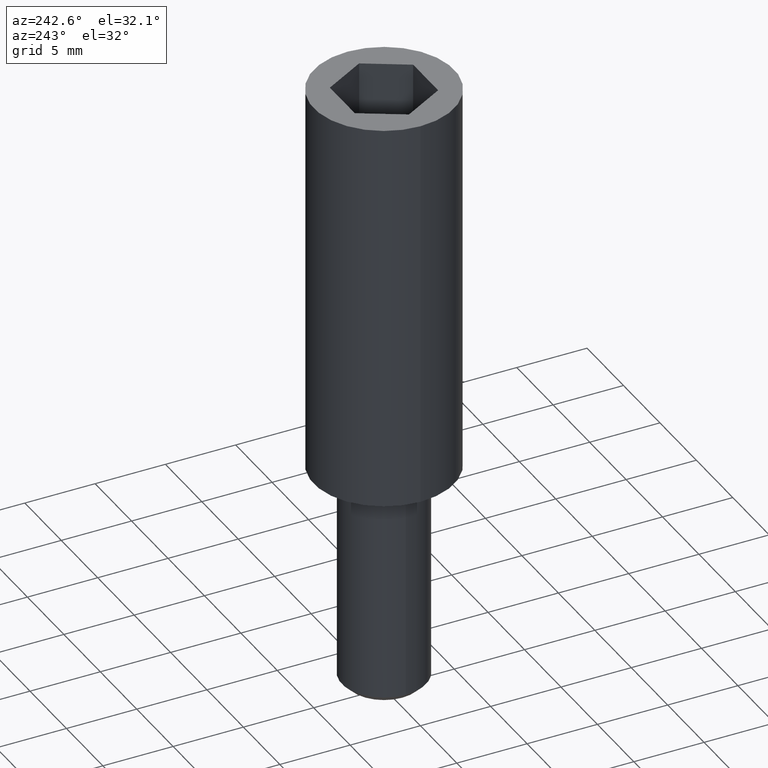
[diagram: clean part render]
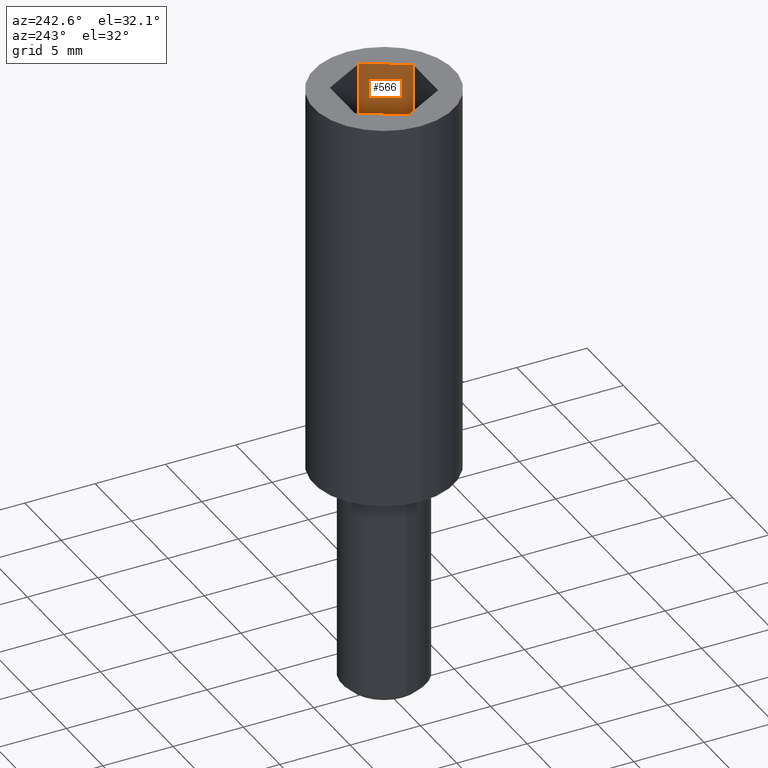
[diagram: same view with one face highlighted and labeled with its STEP entity id]
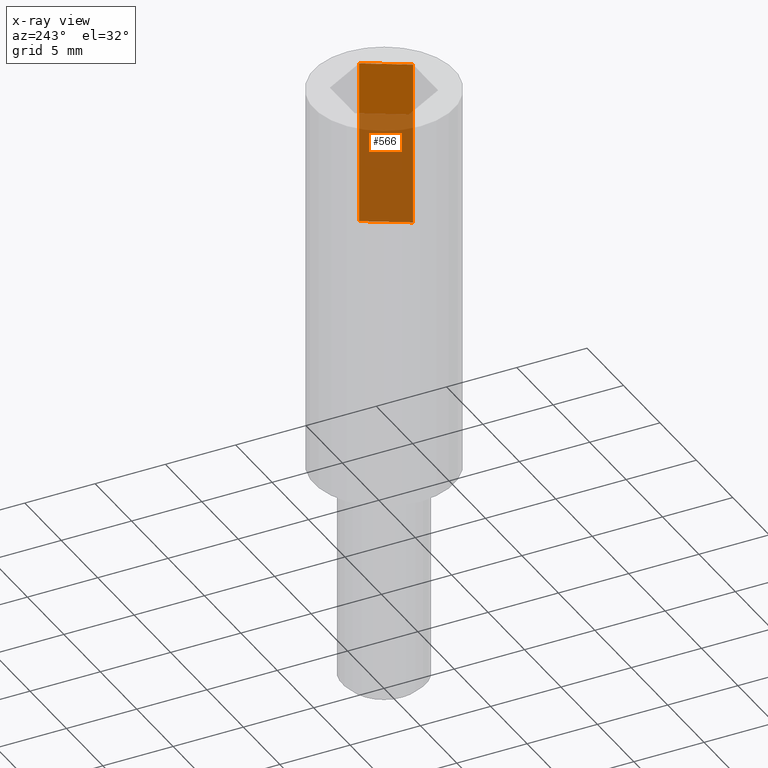
[diagram: x-ray of the same camera — body ghosted, the highlighted face saturated]
A machine part, auxiliary view. The second image highlights one B-rep face of the part: STEP entity #566.
The next image is the same camera in x-ray: the body ghosted, the highlighted face saturated — about 68% of this face is hidden behind the body in this view.
In plain terms, the highlighted planar face has unit normal (-0.866, 0.5, -0).
Its self-contained STEP definition (entity closure, byte-faithful):
#27=CARTESIAN_POINT('',(3.421172276945413,0.0,27.999999999999773));
#28=VERTEX_POINT('',#27);
#37=CARTESIAN_POINT('',(1.710586138472991,-2.962822102557823,27.999999999999773));
#38=VERTEX_POINT('',#37);
#39=CARTESIAN_POINT('',(1.710586138472990,-2.962822102557823,27.999999999999773));
#40=DIRECTION('',(0.499999999999932,0.866025403784478,0.0));
#41=VECTOR('',#40,3.421172276945309);
#42=LINE('',#39,#41);
#43=EDGE_CURVE('',#38,#28,#42,.T.);
#428=CARTESIAN_POINT('',(3.421172276945413,0.0,16.232834198551473));
#429=VERTEX_POINT('',#428);
#430=CARTESIAN_POINT('',(3.421172276945413,0.0,27.999999999999773));
#431=DIRECTION('',(0.0,0.0,-1.0));
#432=VECTOR('',#431,11.767165801448300);
#433=LINE('',#430,#432);
#434=EDGE_CURVE('',#28,#429,#433,.T.);
#533=CARTESIAN_POINT('',(1.710586138472991,-2.962822102557823,16.232834198551473));
#534=VERTEX_POINT('',#533);
#535=CARTESIAN_POINT('',(1.710586138472991,-2.962822102557823,27.999999999999773));
#536=DIRECTION('',(0.0,0.0,-1.0));
#537=VECTOR('',#536,11.767165801448300);
#538=LINE('',#535,#537);
#539=EDGE_CURVE('',#38,#534,#538,.T.);
#550=CARTESIAN_POINT('',(1.710586138472991,-2.962822102557823,27.999999999999773));
#551=DIRECTION('',(-0.866025403784478,0.499999999999932,-3.061617E-017));
#552=DIRECTION('',(0.499999999999932,0.866025403784478,-5.302876E-017));
#553=AXIS2_PLACEMENT_3D('',#550,#551,#552);
#554=PLANE('',#553);
#555=CARTESIAN_POINT('',(1.710586138472990,-2.962822102557823,16.232834198551473));
#556=DIRECTION('',(0.499999999999932,0.866025403784478,0.0));
#557=VECTOR('',#556,3.421172276945309);
#558=LINE('',#555,#557);
#559=EDGE_CURVE('',#534,#429,#558,.T.);
#560=ORIENTED_EDGE('',*,*,#559,.F.);
#561=ORIENTED_EDGE('',*,*,#539,.F.);
#562=ORIENTED_EDGE('',*,*,#43,.T.);
#563=ORIENTED_EDGE('',*,*,#434,.T.);
#564=EDGE_LOOP('',(#560,#561,#562,#563));
#565=FACE_OUTER_BOUND('',#564,.T.);
#566=ADVANCED_FACE('',(#565),#554,.T.);